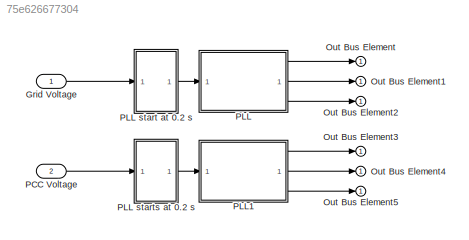
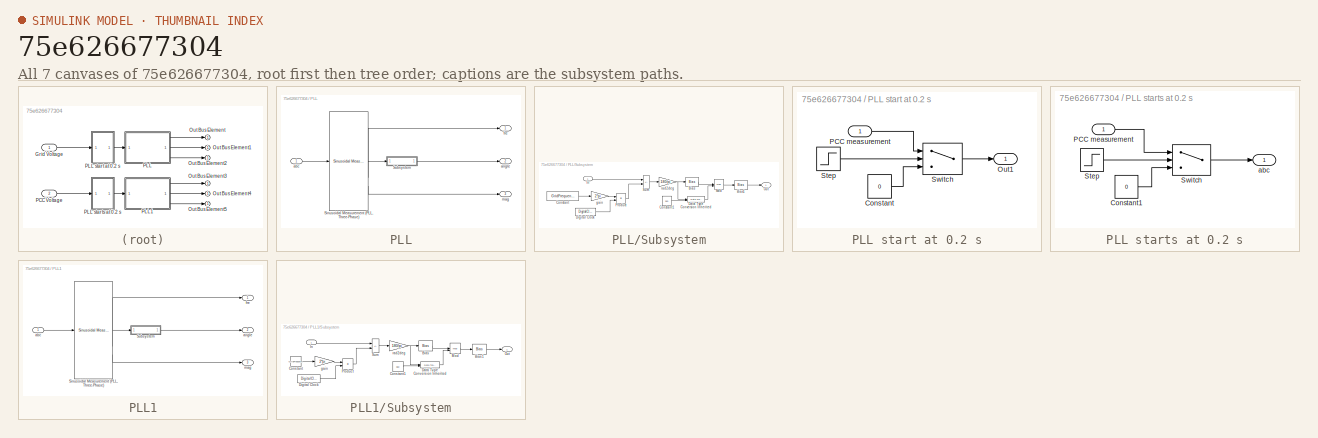
[diagram: thumbnail index - all 7 canvases of the model, root first then tree order]
MODEL slx_75e626677304
KIND model
CONFIG AbsTol = auto
CONFIG EnableMultiTasking = off
CONFIG FixedStep = Ts
CONFIG MaxStep = auto
CONFIG MinStep = auto
CONFIG RelTol = 1e-3
CONFIG SampleTimeConstraint = Unconstrained
CONFIG SolverName = FixedStepAuto
CONFIG StartTime = 0.0
CONFIG StopTime = 10.0
WORKSPACE source: mxarray member
WORKSPACE GridFrequency = 60
WORKSPACE KiPLLController = 0
WORKSPACE KpPLLController = 0
WORKSPACE Ts1: Simulink.Parameter (value not decoded)
BLOCK [Inport] Grid Voltage
BLOCK [Outport] Out Bus Element
BLOCK [Outport] Out Bus Element1
BLOCK [Outport] Out Bus Element2
BLOCK [Outport] Out Bus Element3
BLOCK [Outport] Out Bus Element4
BLOCK [Outport] Out Bus Element5
BLOCK [Inport] PCC Voltage
  Port = 2
BLOCK [SubSystem] PLL
BLOCK [SubSystem] PLL start at 0.2 s
BLOCK [Constant] PLL start at 0.2 s/Constant
  Value = 0
BLOCK [Outport] PLL start at 0.2 s/Out1
BLOCK [Inport] PLL start at 0.2 s/PCC measurement
BLOCK [Step] PLL start at 0.2 s/Step
  SampleTime = Ts1
  Time = 0.2
BLOCK [Switch] PLL start at 0.2 s/Switch
  Criteria = u2 > Threshold
  InputSameDT = off
  SaturateOnIntegerOverflow = off
  Threshold = 0.5
BLOCK [SubSystem] PLL starts at 0.2 s
BLOCK [Constant] PLL starts at 0.2 s/Constant1
  Value = 0
BLOCK [Inport] PLL starts at 0.2 s/PCC measurement
BLOCK [Step] PLL starts at 0.2 s/Step
  SampleTime = Ts1
  Time = 0.2
BLOCK [Switch] PLL starts at 0.2 s/Switch
  Criteria = u2 > Threshold
  InputSameDT = off
  SaturateOnIntegerOverflow = off
  Threshold = 0.5
BLOCK [Outport] PLL starts at 0.2 s/abc
BLOCK [Reference] PLL/Sinusoidal Measurement (PLL, Three-Phase)  REF=eeSinusoidalMeasurement/Sinusoidal Measurement
(PLL, Three-Phase)
  SourceBlock = eeSinusoidalMeasurement/Sinusoidal Measurement\n(PLL, Three-Phase)
  SourceType = Sinusoidal Measurement (PLL, Three-Phase)
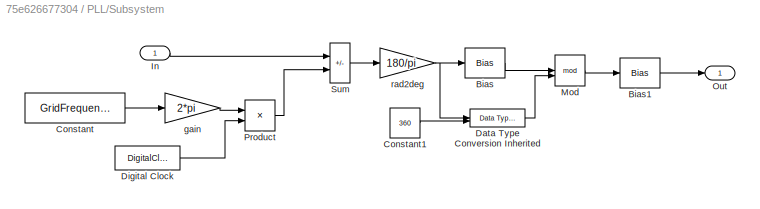
BLOCK [SubSystem] PLL/Subsystem
BLOCK [Bias] PLL/Subsystem/Bias
  Bias = 180
  SaturateOnIntegerOverflow = off
BLOCK [Bias] PLL/Subsystem/Bias1
  Bias = -180
  SaturateOnIntegerOverflow = off
BLOCK [Constant] PLL/Subsystem/Constant
  Value = GridFrequency
BLOCK [Constant] PLL/Subsystem/Constant1
  Value = 360
BLOCK [Reference] PLL/Subsystem/Data Type Conversion Inherited  REF=simulink/Signal
Attributes/Data Type
Conversion
Inherited
  SourceBlock = simulink/Signal\nAttributes/Data Type\nConversion\nInherited
  SourceType = Conversion Inherited
BLOCK [DigitalClock] PLL/Subsystem/Digital Clock
  SampleTime = Ts1
BLOCK [Inport] PLL/Subsystem/In
BLOCK [Math] PLL/Subsystem/Mod
  Operator = mod
BLOCK [Outport] PLL/Subsystem/Out
BLOCK [Product] PLL/Subsystem/Product
BLOCK [Sum] PLL/Subsystem/Sum
  IconShape = rectangular
  Inputs = +-
  OutDataTypeStr = Inherit: Same as first input
BLOCK [Gain] PLL/Subsystem/gain
  Gain = 2*pi
BLOCK [Gain] PLL/Subsystem/rad2deg
  Gain = 180/pi
BLOCK [Inport] PLL/abc
BLOCK [Outport] PLL/angle
  Port = 2
BLOCK [Outport] PLL/fre
BLOCK [Outport] PLL/mag
  Port = 3
BLOCK [SubSystem] PLL1
BLOCK [Reference] PLL1/Sinusoidal Measurement (PLL, Three-Phase)  REF=eeSinusoidalMeasurement/Sinusoidal Measurement
(PLL, Three-Phase)
  SourceBlock = eeSinusoidalMeasurement/Sinusoidal Measurement\n(PLL, Three-Phase)
  SourceType = Sinusoidal Measurement (PLL, Three-Phase)
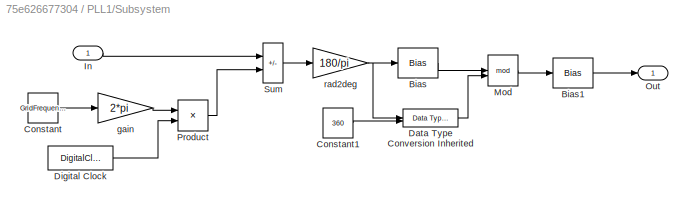
BLOCK [SubSystem] PLL1/Subsystem
BLOCK [Bias] PLL1/Subsystem/Bias
  Bias = 180
  SaturateOnIntegerOverflow = off
BLOCK [Bias] PLL1/Subsystem/Bias1
  Bias = -180
  SaturateOnIntegerOverflow = off
BLOCK [Constant] PLL1/Subsystem/Constant
  Value = GridFrequency
BLOCK [Constant] PLL1/Subsystem/Constant1
  Value = 360
BLOCK [Reference] PLL1/Subsystem/Data Type Conversion Inherited  REF=simulink/Signal
Attributes/Data Type
Conversion
Inherited
  SourceBlock = simulink/Signal\nAttributes/Data Type\nConversion\nInherited
  SourceType = Conversion Inherited
BLOCK [DigitalClock] PLL1/Subsystem/Digital Clock
  SampleTime = Ts1
BLOCK [Inport] PLL1/Subsystem/In
BLOCK [Math] PLL1/Subsystem/Mod
  Operator = mod
BLOCK [Outport] PLL1/Subsystem/Out
BLOCK [Product] PLL1/Subsystem/Product
BLOCK [Sum] PLL1/Subsystem/Sum
  IconShape = rectangular
  Inputs = +-
  OutDataTypeStr = Inherit: Same as first input
BLOCK [Gain] PLL1/Subsystem/gain
  Gain = 2*pi
BLOCK [Gain] PLL1/Subsystem/rad2deg
  Gain = 180/pi
BLOCK [Inport] PLL1/abc
BLOCK [Outport] PLL1/angle
  Port = 2
BLOCK [Outport] PLL1/fre
BLOCK [Outport] PLL1/mag
  Port = 3
LINE Grid Voltage:1 -> PLL start at 0.2 s:1
LINE PCC Voltage:1 -> PLL starts at 0.2 s:1
LINE PLL start at 0.2 s/Constant:1 -> PLL start at 0.2 s/Switch:3
LINE PLL start at 0.2 s/PCC measurement:1 -> PLL start at 0.2 s/Switch:1
LINE PLL start at 0.2 s/Step:1 -> PLL start at 0.2 s/Switch:2
LINE PLL start at 0.2 s/Switch:1 -> PLL start at 0.2 s/Out1:1
LINE PLL start at 0.2 s:1 -> PLL:1
LINE PLL starts at 0.2 s/Constant1:1 -> PLL starts at 0.2 s/Switch:3
LINE PLL starts at 0.2 s/PCC measurement:1 -> PLL starts at 0.2 s/Switch:1
LINE PLL starts at 0.2 s/Step:1 -> PLL starts at 0.2 s/Switch:2
LINE PLL starts at 0.2 s/Switch:1 -> PLL starts at 0.2 s/abc:1
LINE PLL starts at 0.2 s:1 -> PLL1:1
LINE PLL/Sinusoidal Measurement (PLL, Three-Phase):1 -> PLL/fre:1
LINE PLL/Sinusoidal Measurement (PLL, Three-Phase):2 -> PLL/Subsystem:1
LINE PLL/Sinusoidal Measurement (PLL, Three-Phase):3 -> PLL/mag:1
LINE PLL/Subsystem/Bias1:1 -> PLL/Subsystem/Out:1
LINE PLL/Subsystem/Bias:1 -> PLL/Subsystem/Mod:1
LINE PLL/Subsystem/Constant1:1 -> PLL/Subsystem/Data Type Conversion Inherited:2
LINE PLL/Subsystem/Constant:1 -> PLL/Subsystem/gain:1
LINE PLL/Subsystem/Data Type Conversion Inherited:1 -> PLL/Subsystem/Mod:2
LINE PLL/Subsystem/Digital Clock:1 -> PLL/Subsystem/Product:2
LINE PLL/Subsystem/In:1 -> PLL/Subsystem/Sum:1
LINE PLL/Subsystem/Mod:1 -> PLL/Subsystem/Bias1:1
LINE PLL/Subsystem/Product:1 -> PLL/Subsystem/Sum:2
LINE PLL/Subsystem/Sum:1 -> PLL/Subsystem/rad2deg:1
LINE PLL/Subsystem/gain:1 -> PLL/Subsystem/Product:1
NET PLL/Subsystem/rad2deg:1 -> PLL/Subsystem/Bias:1, PLL/Subsystem/Data Type Conversion Inherited:1
LINE PLL/Subsystem:1 -> PLL/angle:1
LINE PLL/abc:1 -> PLL/Sinusoidal Measurement (PLL, Three-Phase):1
LINE PLL1/Sinusoidal Measurement (PLL, Three-Phase):1 -> PLL1/fre:1
LINE PLL1/Sinusoidal Measurement (PLL, Three-Phase):2 -> PLL1/Subsystem:1
LINE PLL1/Sinusoidal Measurement (PLL, Three-Phase):3 -> PLL1/mag:1
LINE PLL1/Subsystem/Bias1:1 -> PLL1/Subsystem/Out:1
LINE PLL1/Subsystem/Bias:1 -> PLL1/Subsystem/Mod:1
LINE PLL1/Subsystem/Constant1:1 -> PLL1/Subsystem/Data Type Conversion Inherited:2
LINE PLL1/Subsystem/Constant:1 -> PLL1/Subsystem/gain:1
LINE PLL1/Subsystem/Data Type Conversion Inherited:1 -> PLL1/Subsystem/Mod:2
LINE PLL1/Subsystem/Digital Clock:1 -> PLL1/Subsystem/Product:2
LINE PLL1/Subsystem/In:1 -> PLL1/Subsystem/Sum:1
LINE PLL1/Subsystem/Mod:1 -> PLL1/Subsystem/Bias1:1
LINE PLL1/Subsystem/Product:1 -> PLL1/Subsystem/Sum:2
LINE PLL1/Subsystem/Sum:1 -> PLL1/Subsystem/rad2deg:1
LINE PLL1/Subsystem/gain:1 -> PLL1/Subsystem/Product:1
NET PLL1/Subsystem/rad2deg:1 -> PLL1/Subsystem/Bias:1, PLL1/Subsystem/Data Type Conversion Inherited:1
LINE PLL1/Subsystem:1 -> PLL1/angle:1
LINE PLL1/abc:1 -> PLL1/Sinusoidal Measurement (PLL, Three-Phase):1
LINE PLL1:1 -> Out Bus Element3:1
LINE PLL1:2 -> Out Bus Element4:1
LINE PLL1:3 -> Out Bus Element5:1
LINE PLL:1 -> Out Bus Element:1
LINE PLL:2 -> Out Bus Element1:1
LINE PLL:3 -> Out Bus Element2:1
note: NET lines group one-source signal fan-out (src -> all destinations, sorted); 1:1 wires keep LINE
